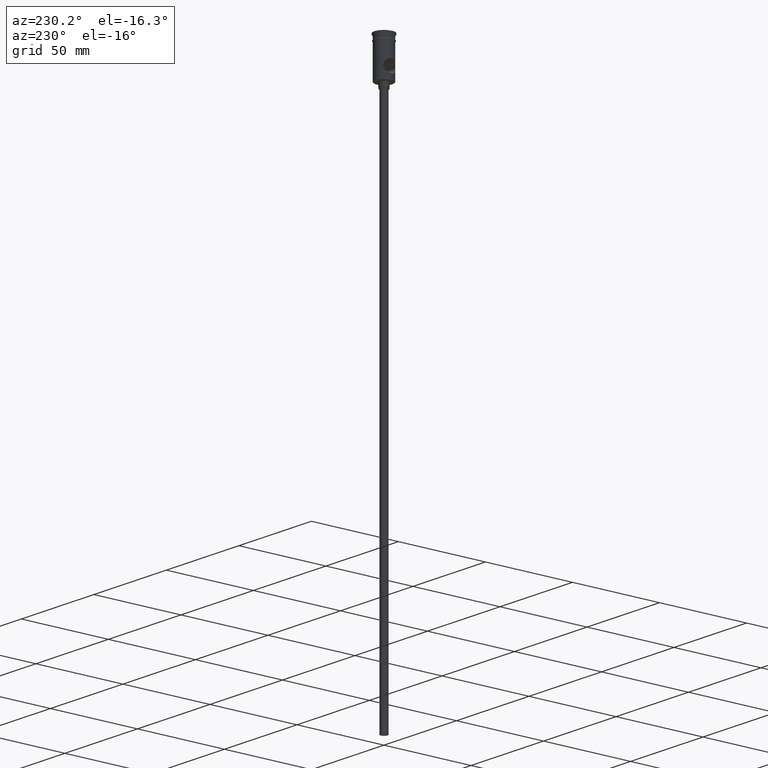
[diagram: clean part render]
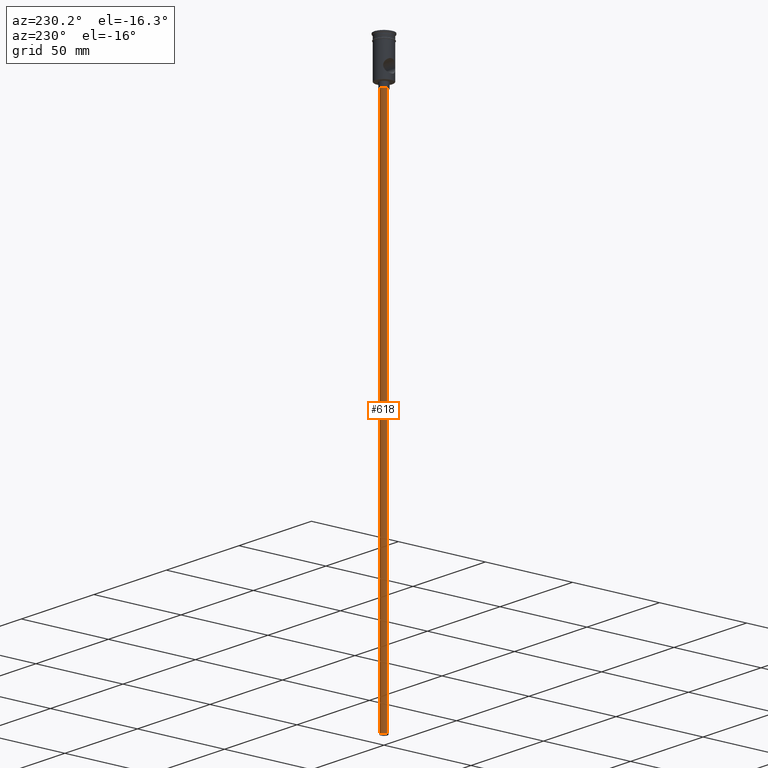
[diagram: same view with one face highlighted and labeled with its STEP entity id]
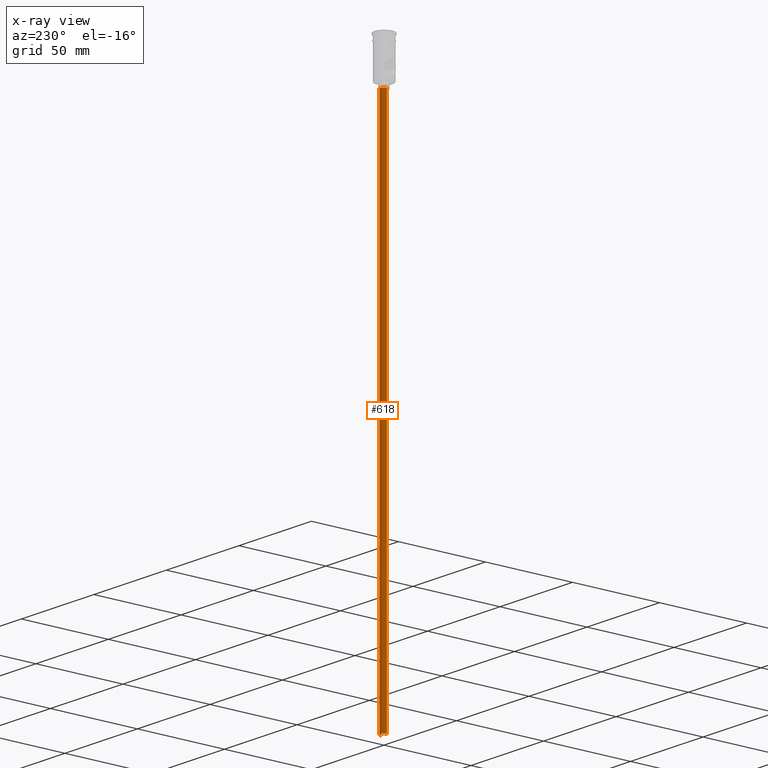
[diagram: x-ray of the same camera — body ghosted, the highlighted face saturated]
A machine part, auxiliary view. The second image highlights one B-rep face of the part: STEP entity #618.
The next image is the same camera in x-ray: the body ghosted, the highlighted face saturated — about 0% of this face is hidden behind the body in this view.
In plain terms, the highlighted cylindrical surface (edge-blend (fillet) strip) has radius 2 mm, axis along (-0, -0, 1).
Its self-contained STEP definition (entity closure, byte-faithful):
#26 = EDGE_CURVE ( 'NONE', #1271, #512, #1128, .T. ) ;
#134 = EDGE_LOOP ( 'NONE', ( #1419, #658, #359, #329 ) ) ;
#207 = CARTESIAN_POINT ( 'NONE',  ( -2.000000000000000000, 2.449293598294706414E-16, -322.5000000000000000 ) ) ;
#240 = VERTEX_POINT ( 'NONE', #488 ) ;
#242 = EDGE_CURVE ( 'NONE', #985, #1271, #695, .T. ) ;
#263 = VECTOR ( 'NONE', #407, 1000.000000000000000 ) ;
#287 = VECTOR ( 'NONE', #828, 1000.000000000000000 ) ;
#291 = EDGE_CURVE ( 'NONE', #240, #512, #632, .T. ) ;
#306 = CARTESIAN_POINT ( 'NONE',  ( 2.000000000000000000, 0.000000000000000000, -322.5000000000000000 ) ) ;
#316 = DIRECTION ( 'NONE',  ( -1.000000000000000000, 0.000000000000000000, 0.000000000000000000 ) ) ;
#329 = ORIENTED_EDGE ( 'NONE', *, *, #291, .F. ) ;
#334 = CYLINDRICAL_SURFACE ( 'NONE', #892, 2.000000000000000000 ) ;
#335 = CIRCLE ( 'NONE', #1151, 2.000000000000000000 ) ;
#359 = ORIENTED_EDGE ( 'NONE', *, *, #26, .T. ) ;
#372 = EDGE_CURVE ( 'NONE', #985, #240, #335, .T. ) ;
#407 = DIRECTION ( 'NONE',  ( -0.000000000000000000, -0.000000000000000000, 1.000000000000000000 ) ) ;
#488 = CARTESIAN_POINT ( 'NONE',  ( 2.000000000000000000, 0.000000000000000000, -322.5000000000000000 ) ) ;
#512 = VERTEX_POINT ( 'NONE', #796 ) ;
#525 = CARTESIAN_POINT ( 'NONE',  ( 0.000000000000000000, 0.000000000000000000, -322.5000000000000000 ) ) ;
#618 = ADVANCED_FACE ( 'NONE', ( #644 ), #334, .T. ) ;
#622 = DIRECTION ( 'NONE',  ( -1.000000000000000000, 0.000000000000000000, 0.000000000000000000 ) ) ;
#632 = LINE ( 'NONE', #306, #263 ) ;
#644 = FACE_OUTER_BOUND ( 'NONE', #134, .T. ) ;
#658 = ORIENTED_EDGE ( 'NONE', *, *, #242, .T. ) ;
#695 = LINE ( 'NONE', #1251, #287 ) ;
#780 = CARTESIAN_POINT ( 'NONE',  ( -2.000000000000000000, 2.449293598294706414E-16, -25.50000000000000000 ) ) ;
#796 = CARTESIAN_POINT ( 'NONE',  ( 2.000000000000000000, 0.000000000000000000, -25.50000000000000000 ) ) ;
#828 = DIRECTION ( 'NONE',  ( -0.000000000000000000, -0.000000000000000000, 1.000000000000000000 ) ) ;
#892 = AXIS2_PLACEMENT_3D ( 'NONE', #1442, #908, #903 ) ;
#903 = DIRECTION ( 'NONE',  ( 1.000000000000000000, 0.000000000000000000, 0.000000000000000000 ) ) ;
#908 = DIRECTION ( 'NONE',  ( -0.000000000000000000, -0.000000000000000000, 1.000000000000000000 ) ) ;
#913 = AXIS2_PLACEMENT_3D ( 'NONE', #1098, #1195, #316 ) ;
#985 = VERTEX_POINT ( 'NONE', #207 ) ;
#1067 = DIRECTION ( 'NONE',  ( 0.000000000000000000, 0.000000000000000000, -1.000000000000000000 ) ) ;
#1098 = CARTESIAN_POINT ( 'NONE',  ( 0.000000000000000000, 0.000000000000000000, -25.50000000000000000 ) ) ;
#1128 = CIRCLE ( 'NONE', #913, 2.000000000000000000 ) ;
#1151 = AXIS2_PLACEMENT_3D ( 'NONE', #525, #1067, #622 ) ;
#1195 = DIRECTION ( 'NONE',  ( 0.000000000000000000, 0.000000000000000000, -1.000000000000000000 ) ) ;
#1251 = CARTESIAN_POINT ( 'NONE',  ( -2.000000000000000000, 2.449293598294706414E-16, -322.5000000000000000 ) ) ;
#1271 = VERTEX_POINT ( 'NONE', #780 ) ;
#1419 = ORIENTED_EDGE ( 'NONE', *, *, #372, .F. ) ;
#1442 = CARTESIAN_POINT ( 'NONE',  ( 0.000000000000000000, 0.000000000000000000, -322.5000000000000000 ) ) ;